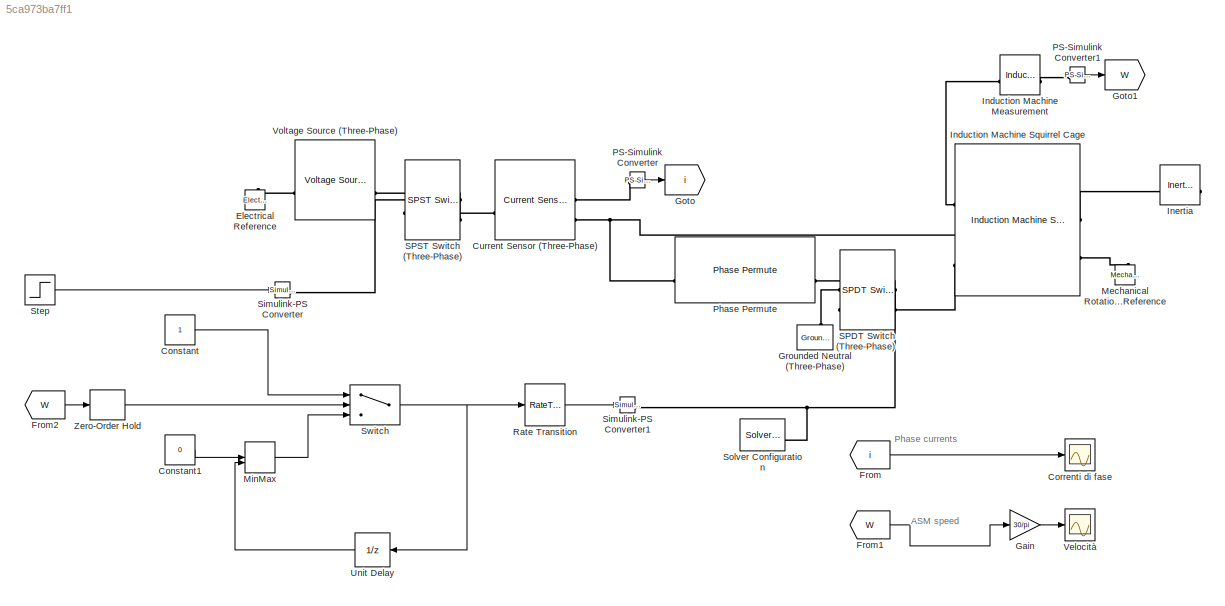
MODEL slx_5ca973ba7ff1
KIND model
CONFIG AbsTol = auto
CONFIG EnableMultiTasking = off
CONFIG FixedStep = auto
CONFIG MaxStep = auto
CONFIG MinStep = auto
CONFIG RelTol = 1e-3
CONFIG SampleTimeConstraint = Unconstrained
CONFIG SolverName = ode23t
CONFIG StartTime = 0.0
CONFIG StopTime = 30
BLOCK [Constant] Constant
BLOCK [Constant] Constant1
  Value = 0
BLOCK [Scope] Correnti di fase
  Floating = off
  NumInputPorts = 1
  ScopeSpecificationString = Simulink.scopes.TimeScopeBlockCfg('CurrentConfiguration', extmgr.ConfigurationSet(extmgr.Configuration('Core','General UI',true,'FigureColor',[1 1 1]),extmgr.Configuration('Core','Source UI',true),extmgr.Configuration('Sources','WiredSimulink',true),extmgr.Configuration('Visuals','Time Domain',true,'SerializedDisplays',{struct('MinYLimReal','-185.05653','MaxYLimReal','185.096','YLabelReal','','Min...<+1877ch>
BLOCK [Reference] Current Sensor (Three-Phase)  REF=ee_lib/Sensors &
Transducers/Current Sensor
(Three-Phase)
  SourceBlock = ee_lib/Sensors &\nTransducers/Current Sensor\n(Three-Phase)
  SourceType = Current Sensor\n(Three-Phase)
BLOCK [Reference] Electrical Reference  REF=fl_lib/Electrical/Electrical Elements/Electrical Reference
  NameLocation = right
  SourceBlock = fl_lib/Electrical/Electrical Elements/Electrical Reference
  SourceType = Electrical Reference
BLOCK [From] From
  GotoTag = i
BLOCK [From] From1
  GotoTag = W
BLOCK [From] From2
  GotoTag = W
BLOCK [Gain] Gain
  Gain = 30/pi
BLOCK [Goto] Goto
  GotoTag = i
BLOCK [Goto] Goto1
  GotoTag = W
BLOCK [Reference] Grounded Neutral (Three-Phase)  REF=ee_lib/Connectors &
References/Grounded Neutral
(Three-Phase)
  NameLocation = right
  SourceBlock = ee_lib/Connectors &\nReferences/Grounded Neutral\n(Three-Phase)
  SourceType = Grounded Neutral\n(Three-Phase)
BLOCK [Reference] Induction Machine Measurement  REF=ee_lib/Electromechanical/Asynchronous/Induction Machine
Measurement
  SourceBlock = ee_lib/Electromechanical/Asynchronous/Induction Machine\nMeasurement
  SourceType = Induction Machine\nMeasurement
BLOCK [Reference] Induction Machine Squirrel Cage  REF=ee_lib/Electromechanical/Asynchronous/Induction Machine
Squirrel Cage
  SourceBlock = ee_lib/Electromechanical/Asynchronous/Induction Machine\nSquirrel Cage
  SourceType = Induction Machine\nSquirrel Cage
BLOCK [Reference] Inertia  REF=fl_lib/Mechanical/Rotational Elements/Inertia
  NameLocation = top
  SourceBlock = fl_lib/Mechanical/Rotational Elements/Inertia
  SourceType = Inertia
BLOCK [Reference] Mechanical Rotational Reference  REF=fl_lib/Mechanical/Rotational Elements/Mechanical
Rotational Reference
  NameLocation = right
  SourceBlock = fl_lib/Mechanical/Rotational Elements/Mechanical\nRotational Reference
  SourceType = Mechanical\nRotational Reference
BLOCK [MinMax] MinMax
  Function = max
  Inputs = 2
BLOCK [Reference] PS-Simulink Converter  REF=nesl_utility/PS-Simulink
Converter
  SourceBlock = nesl_utility/PS-Simulink\nConverter
  SourceType = PS-Simulink\nConverter
BLOCK [Reference] PS-Simulink Converter1  REF=nesl_utility/PS-Simulink
Converter
  SourceBlock = nesl_utility/PS-Simulink\nConverter
  SourceType = PS-Simulink\nConverter
BLOCK [Reference] Phase Permute  REF=ee_lib/Connectors &
References/Phase Permute
  SourceBlock = ee_lib/Connectors &\nReferences/Phase Permute
  SourceType = Phase Permute
BLOCK [RateTransition] Rate Transition
BLOCK [Reference] SPDT Switch (Three-Phase)  REF=ee_lib/Switches & Breakers/SPDT Switch
(Three-Phase)
  SourceBlock = ee_lib/Switches & Breakers/SPDT Switch\n(Three-Phase)
  SourceType = SPDT Switch\n(Three-Phase)
BLOCK [Reference] SPST Switch (Three-Phase)  REF=ee_lib/Switches & Breakers/SPST Switch
(Three-Phase)
  SourceBlock = ee_lib/Switches & Breakers/SPST Switch\n(Three-Phase)
  SourceType = SPST Switch\n(Three-Phase)
BLOCK [Reference] Simulink-PS Converter  REF=nesl_utility/Simulink-PS
Converter
  SourceBlock = nesl_utility/Simulink-PS\nConverter
  SourceType = Simulink-PS\nConverter
BLOCK [Reference] Simulink-PS Converter1  REF=nesl_utility/Simulink-PS
Converter
  SourceBlock = nesl_utility/Simulink-PS\nConverter
  SourceType = Simulink-PS\nConverter
BLOCK [Reference] Solver Configuration  REF=nesl_utility/Solver
Configuration
  SourceBlock = nesl_utility/Solver\nConfiguration
  SourceType = Solver\nConfiguration
BLOCK [Step] Step
  SampleTime = 0
BLOCK [Switch] Switch
  Criteria = u2 > Threshold
  InputSameDT = off
  SaturateOnIntegerOverflow = off
  Threshold = 0.98
BLOCK [UnitDelay] Unit Delay
  HasFrameUpgradeWarning = on
  SampleTime = 0.1
BLOCK [Scope] Velocità
  Floating = off
  NumInputPorts = 1
  ScopeSpecificationString = Simulink.scopes.TimeScopeBlockCfg('CurrentConfiguration', extmgr.ConfigurationSet(extmgr.Configuration('Core','General UI',true,'FigureColor',[1 1 1]),extmgr.Configuration('Core','Source UI',true),extmgr.Configuration('Sources','WiredSimulink',true,'DataLoggingVariableName','speed_rot','DataLogging',true,'DataLoggingSaveFormat','Array'),extmgr.Configuration('Visuals','Time Domain',true,'Serialized...<+1721ch>
BLOCK [Reference] Voltage Source (Three-Phase)  REF=ee_lib/Sources/Voltage
Source
(Three-Phase)
  SourceBlock = ee_lib/Sources/Voltage\nSource\n(Three-Phase)
  SourceType = Voltage\nSource\n(Three-Phase)
BLOCK [ZeroOrderHold] Zero-Order Hold
  SampleTime = 0.1
ANNOTATION (root): ASM speed
ANNOTATION (root): Phase currents
LINE Constant1:1 -> MinMax:1
LINE Constant:1 -> Switch:1
LINE From1:1 -> Gain:1
LINE From2:1 -> Zero-Order Hold:1
LINE From:1 -> Correnti di fase:1
LINE Gain:1 -> Velocità:1
LINE MinMax:1 -> Switch:3
LINE PS-Simulink Converter1:1 -> Goto1:1
LINE PS-Simulink Converter:1 -> Goto:1
LINE Rate Transition:1 -> Simulink-PS Converter1:1
LINE Step:1 -> Simulink-PS Converter:1
NET Switch:1 -> Rate Transition:1, Unit Delay:1
LINE Unit Delay:1 -> MinMax:2
LINE Zero-Order Hold:1 -> Switch:2
PLINE Current Sensor (Three-Phase):LConn1 -- SPST Switch (Three-Phase):RConn1
PLINE Current Sensor (Three-Phase):RConn1 -- PS-Simulink Converter:LConn1
PNET net1: Current Sensor (Three-Phase):RConn2 -- Induction Machine Squirrel Cage:RConn2 -- Phase Permute:LConn1
PLINE Electrical Reference:LConn1 -- Voltage Source (Three-Phase):LConn1
PLINE Grounded Neutral (Three-Phase):LConn1 -- SPDT Switch (Three-Phase):RConn1
PLINE Induction Machine Measurement:LConn1 -- Induction Machine Squirrel Cage:RConn1
PLINE Induction Machine Measurement:RConn1 -- PS-Simulink Converter1:LConn1
PLINE Induction Machine Squirrel Cage:LConn1 -- Inertia:LConn1
PLINE Induction Machine Squirrel Cage:LConn2 -- Mechanical Rotational Reference:LConn1
PLINE Induction Machine Squirrel Cage:RConn3 -- SPDT Switch (Three-Phase):LConn2
PLINE Phase Permute:RConn1 -- SPDT Switch (Three-Phase):RConn2
PNET net2: SPDT Switch (Three-Phase):LConn1 -- Simulink-PS Converter1:RConn1 -- Solver Configuration:RConn1
PLINE SPST Switch (Three-Phase):LConn1 -- Simulink-PS Converter:RConn1
PLINE SPST Switch (Three-Phase):LConn2 -- Voltage Source (Three-Phase):RConn1
note: NET lines group one-source signal fan-out (src -> all destinations, sorted); 1:1 wires keep LINE; PNET lines group multi-terminal physical nets as a canonical sorted terminal list (undirected conserving connections); 2-terminal nets keep the pairwise PLINE form
